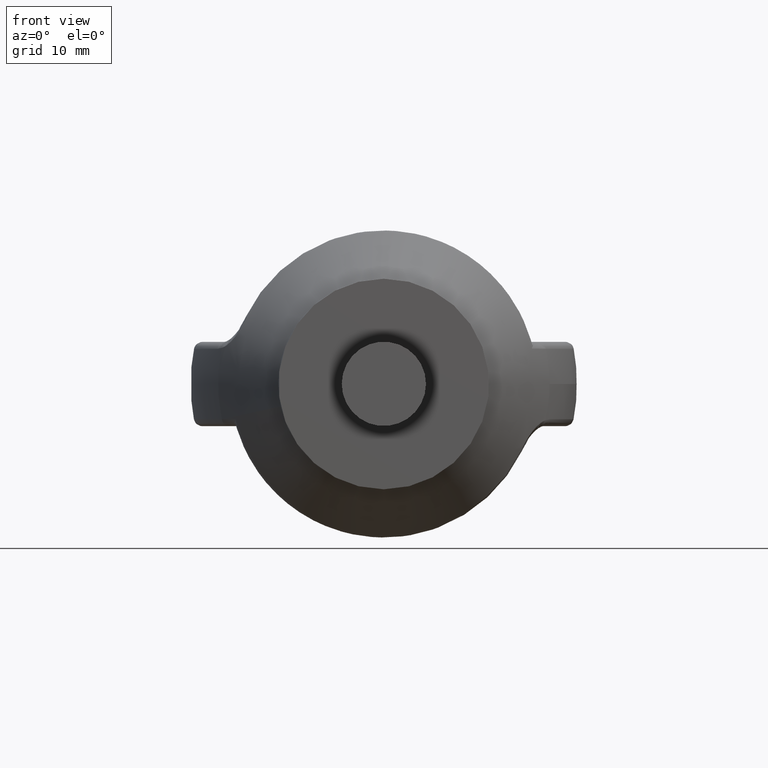
[diagram: clean part render]
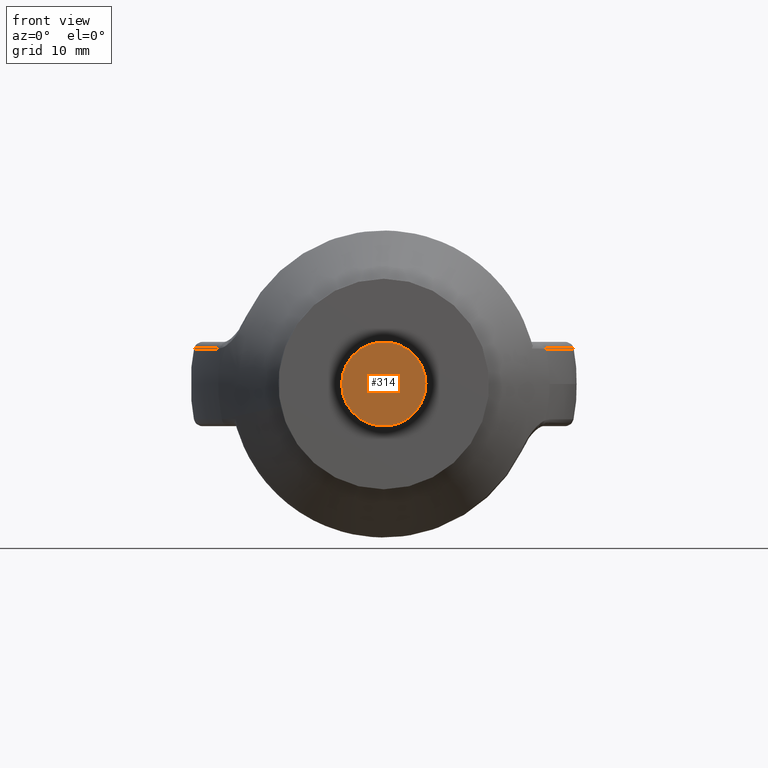
[diagram: same view with one face highlighted and labeled with its STEP entity id]
A machine part, front view. The second image highlights one B-rep face of the part: STEP entity #314.
In plain terms, the highlighted planar face has unit normal (0, 1, 0).
Its self-contained STEP definition (entity closure, byte-faithful):
#141=FACE_OUTER_BOUND('',#716,.T.);
#314=ADVANCED_FACE('',(#141),#489,.F.);
#489=PLANE('',#3240);
#592=CIRCLE('',#3238,6.);
#716=EDGE_LOOP('',(#1490));
#1490=ORIENTED_EDGE('',*,*,#2628,.F.);
#2322=VERTEX_POINT('',#4462);
#2628=EDGE_CURVE('',#2322,#2322,#592,.T.);
#3238=AXIS2_PLACEMENT_3D('',#4461,#3510,#3511);
#3240=AXIS2_PLACEMENT_3D('',#4464,#3514,#3515);
#3510=DIRECTION('',(0.,1.,0.));
#3511=DIRECTION('',(1.,0.,6.12323399573677E-17));
#3514=DIRECTION('',(0.,1.,0.));
#3515=DIRECTION('',(0.,0.,1.));
#4461=CARTESIAN_POINT('',(0.,-18.,0.));
#4462=CARTESIAN_POINT('',(6.,-18.,3.67394039744206E-16));
#4464=CARTESIAN_POINT('',(0.,-18.,0.));